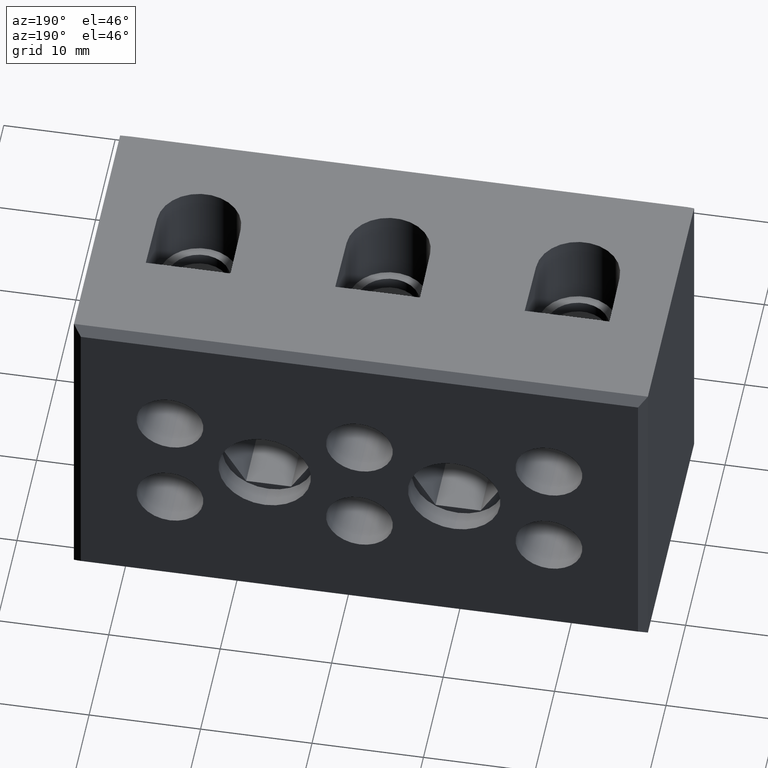
[diagram: clean part render]
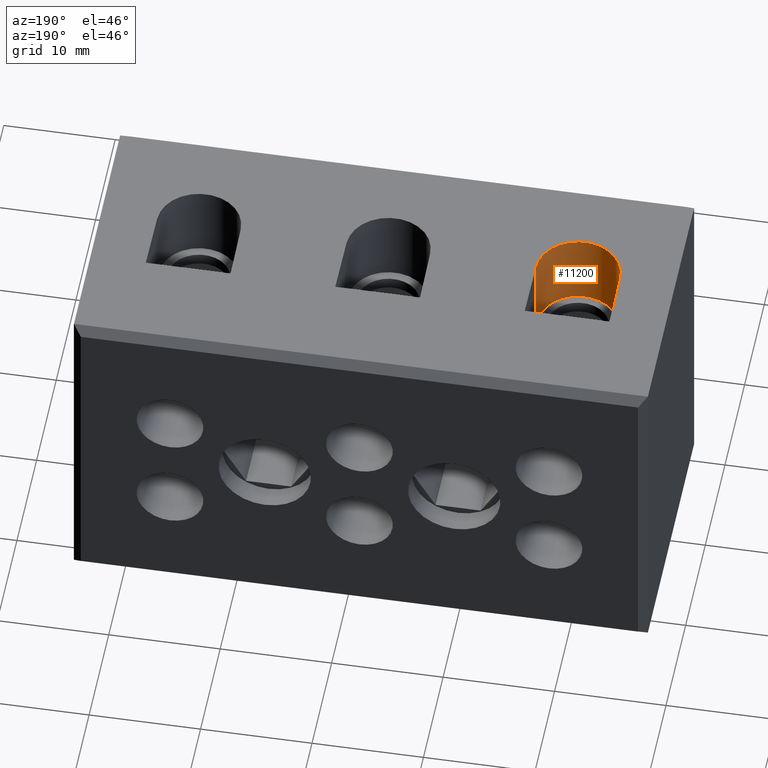
[diagram: same view with one face highlighted and labeled with its STEP entity id]
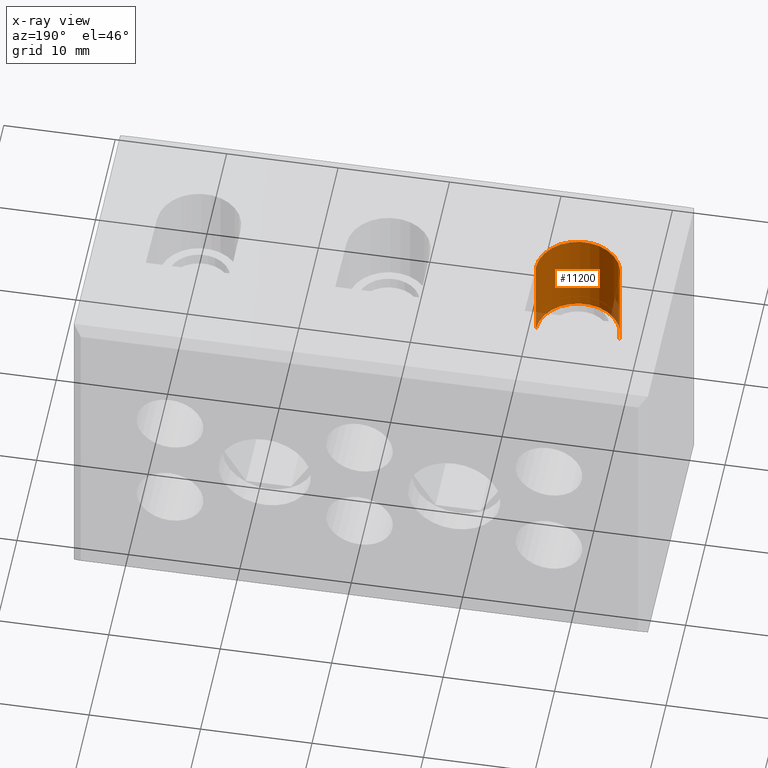
[diagram: x-ray of the same camera — body ghosted, the highlighted face saturated]
A machine part, auxiliary view. The second image highlights one B-rep face of the part: STEP entity #11200.
The next image is the same camera in x-ray: the body ghosted, the highlighted face saturated — about 4% of this face is hidden behind the body in this view.
In plain terms, the highlighted cylindrical surface (partial cylindrical patch) has radius 3.75 mm, axis along (-0, -0, -1).
Its self-contained STEP definition (entity closure, byte-faithful):
#136 = EDGE_LOOP ( 'NONE', ( #5766, #5802, #5788, #5769 ) ) ;
#772 = VERTEX_POINT ( 'NONE', #7388 ) ;
#792 = VERTEX_POINT ( 'NONE', #7348 ) ;
#828 = VERTEX_POINT ( 'NONE', #7378 ) ;
#866 = VERTEX_POINT ( 'NONE', #7398 ) ;
#4389 = CYLINDRICAL_SURFACE ( 'NONE', #5443, 3.749999999999920100 ) ;
#4393 = FACE_OUTER_BOUND ( 'NONE', #136, .T. ) ;
#4405 = DIRECTION ( 'NONE',  ( -1.000000000000000000, 0.0000000000000000000, 0.0000000000000000000 ) ) ;
#4410 = DIRECTION ( 'NONE',  ( -0.0000000000000000000, -0.0000000000000000000, -1.000000000000000000 ) ) ;
#4435 = CARTESIAN_POINT ( 'NONE',  ( 361.7158352908286400, 338.4299441412572400, 30.00000000000000000 ) ) ;
#5443 = AXIS2_PLACEMENT_3D ( 'NONE', #4435, #4410, #4405 ) ;
#5766 = ORIENTED_EDGE ( 'NONE', *, *, #8528, .F. ) ;
#5769 = ORIENTED_EDGE ( 'NONE', *, *, #8554, .F. ) ;
#5788 = ORIENTED_EDGE ( 'NONE', *, *, #8571, .F. ) ;
#5802 = ORIENTED_EDGE ( 'NONE', *, *, #8595, .F. ) ;
#7348 = CARTESIAN_POINT ( 'NONE',  ( 357.9659893500057700, 338.3959526703623600, 22.15000000000003800 ) ) ;
#7378 = CARTESIAN_POINT ( 'NONE',  ( 357.9659893500057700, 338.3959526703623600, 30.00000000000002500 ) ) ;
#7388 = CARTESIAN_POINT ( 'NONE',  ( 365.4656812316515000, 338.3959526703623600, 22.15000000000003800 ) ) ;
#7398 = CARTESIAN_POINT ( 'NONE',  ( 365.4656812316515000, 338.3959526703623600, 30.00000000000002500 ) ) ;
#7725 = DIRECTION ( 'NONE',  ( 0.0000000000000000000, 0.0000000000000000000, 1.000000000000000000 ) ) ;
#7727 = DIRECTION ( 'NONE',  ( -1.000000000000000000, 0.0000000000000000000, 0.0000000000000000000 ) ) ;
#7733 = CARTESIAN_POINT ( 'NONE',  ( 361.7158352908286400, 338.4299441412572400, 22.15000000000003800 ) ) ;
#8528 = EDGE_CURVE ( 'NONE', #792, #772, #12338, .T. ) ;
#8554 = EDGE_CURVE ( 'NONE', #772, #866, #12006, .T. ) ;
#8571 = EDGE_CURVE ( 'NONE', #866, #828, #12423, .T. ) ;
#8595 = EDGE_CURVE ( 'NONE', #828, #792, #11302, .T. ) ;
#11200 = ADVANCED_FACE ( 'NONE', ( #4393 ), #4389, .F. ) ;
#11265 = DIRECTION ( 'NONE',  ( -0.0000000000000000000, -0.0000000000000000000, -1.000000000000000000 ) ) ;
#11277 = DIRECTION ( 'NONE',  ( -1.000000000000000000, 0.0000000000000000000, 0.0000000000000000000 ) ) ;
#11288 = CARTESIAN_POINT ( 'NONE',  ( 361.7158352908286400, 338.4299441412572400, 30.00000000000002500 ) ) ;
#11302 = LINE ( 'NONE', #11318, #12399 ) ;
#11318 = CARTESIAN_POINT ( 'NONE',  ( 357.9659893500057700, 338.3959526703623600, 30.00000000000000000 ) ) ;
#11336 = DIRECTION ( 'NONE',  ( -0.0000000000000000000, -0.0000000000000000000, -1.000000000000000000 ) ) ;
#12002 = DIRECTION ( 'NONE',  ( 0.0000000000000000000, 0.0000000000000000000, 1.000000000000000000 ) ) ;
#12006 = LINE ( 'NONE', #12009, #12336 ) ;
#12009 = CARTESIAN_POINT ( 'NONE',  ( 365.4656812316515000, 338.3959526703623600, 30.00000000000000000 ) ) ;
#12322 = AXIS2_PLACEMENT_3D ( 'NONE', #7733, #7725, #7727 ) ;
#12336 = VECTOR ( 'NONE', #12002, 1000.000000000000000 ) ;
#12338 = CIRCLE ( 'NONE', #12322, 3.749999999999920100 ) ;
#12399 = VECTOR ( 'NONE', #11336, 1000.000000000000000 ) ;
#12409 = AXIS2_PLACEMENT_3D ( 'NONE', #11288, #11265, #11277 ) ;
#12423 = CIRCLE ( 'NONE', #12409, 3.749999999999920100 ) ;